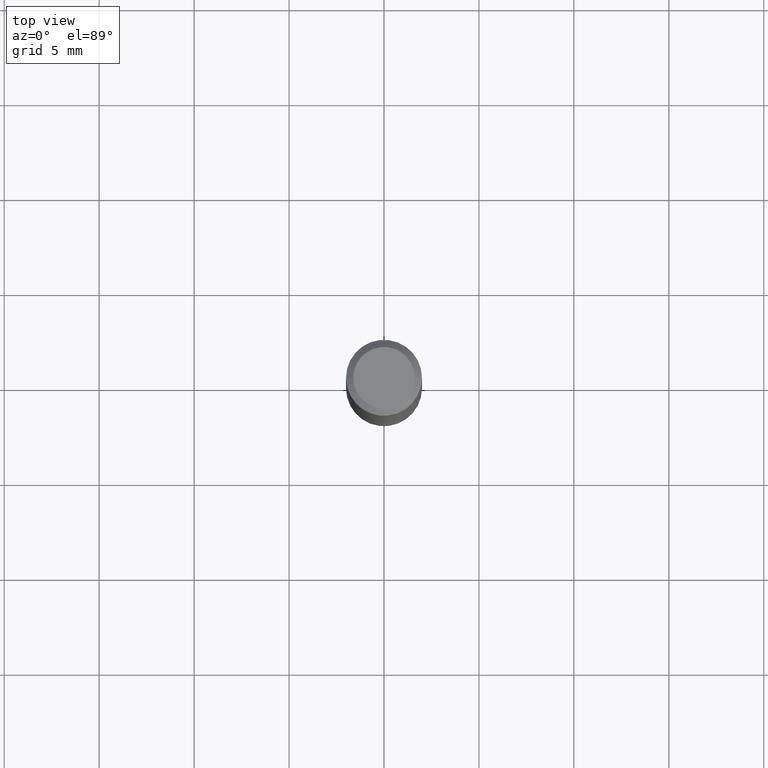
[diagram: clean part render]
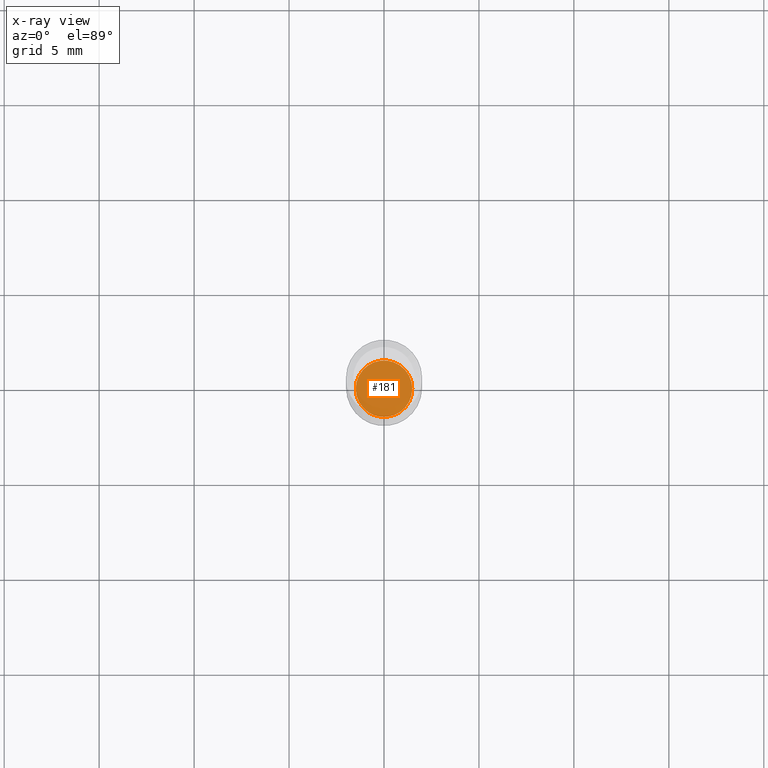
[diagram: x-ray — body ghosted, one internal face saturated and labeled with its STEP entity id]
A machine part, top view, then the same camera in x-ray: the body is ghosted and one INTERNAL B-rep face — a face not visible from any outside direction — is saturated and labeled: STEP entity #181.
In plain terms, the highlighted planar face has unit normal (-0, 0, 1).
Its self-contained STEP definition (entity closure, byte-faithful):
#14 = EDGE_CURVE ( 'NONE', #253, #335, #94, .T. ) ;
#17 = CARTESIAN_POINT ( 'NONE',  ( 3.234866136821698561E-29, -4.618531515021712857E-15, -1.322800000000000198 ) ) ;
#86 = DIRECTION ( 'NONE',  ( 1.000000000000000000, -6.982962677686265922E-15, 4.876176775795935793E-29 ) ) ;
#94 = CIRCLE ( 'NONE', #318, 0.05854999999999999788 ) ;
#98 = DIRECTION ( 'NONE',  ( 1.000000000000000000, -6.982962677686264344E-15, 0.000000000000000000 ) ) ;
#103 = AXIS2_PLACEMENT_3D ( 'NONE', #266, #199, #98 ) ;
#117 = FACE_OUTER_BOUND ( 'NONE', #427, .T. ) ;
#147 = AXIS2_PLACEMENT_3D ( 'NONE', #262, #402, #86 ) ;
#179 = ORIENTED_EDGE ( 'NONE', *, *, #14, .F. ) ;
#181 = ADVANCED_FACE ( 'NONE', ( #117 ), #333, .F. ) ;
#186 = CARTESIAN_POINT ( 'NONE',  ( 0.05854999999999999788, -5.027383979800243981E-15, -1.322800000000000198 ) ) ;
#199 = DIRECTION ( 'NONE',  ( -2.445468806185136597E-29, 3.491481338843145583E-15, 1.000000000000000000 ) ) ;
#253 = VERTEX_POINT ( 'NONE', #186 ) ;
#262 = CARTESIAN_POINT ( 'NONE',  ( 3.234866136821698561E-29, -4.618531515021712857E-15, -1.322800000000000198 ) ) ;
#266 = CARTESIAN_POINT ( 'NONE',  ( 3.234866136821698561E-29, -4.618531515021712857E-15, -1.322800000000000198 ) ) ;
#274 = CIRCLE ( 'NONE', #103, 0.05854999999999999788 ) ;
#318 = AXIS2_PLACEMENT_3D ( 'NONE', #17, #339, #334 ) ;
#333 = PLANE ( 'NONE',  #147 ) ;
#334 = DIRECTION ( 'NONE',  ( 1.000000000000000000, -6.982962677686264344E-15, 0.000000000000000000 ) ) ;
#335 = VERTEX_POINT ( 'NONE', #381 ) ;
#339 = DIRECTION ( 'NONE',  ( -2.445468806185136597E-29, 3.491481338843145583E-15, 1.000000000000000000 ) ) ;
#357 = ORIENTED_EDGE ( 'NONE', *, *, #426, .F. ) ;
#381 = CARTESIAN_POINT ( 'NONE',  ( -0.05854999999999999788, -4.199859516060063851E-15, -1.322800000000000198 ) ) ;
#402 = DIRECTION ( 'NONE',  ( -2.438088387897960049E-29, 3.491481338843145188E-15, 1.000000000000000000 ) ) ;
#426 = EDGE_CURVE ( 'NONE', #335, #253, #274, .T. ) ;
#427 = EDGE_LOOP ( 'NONE', ( #179, #357 ) ) ;